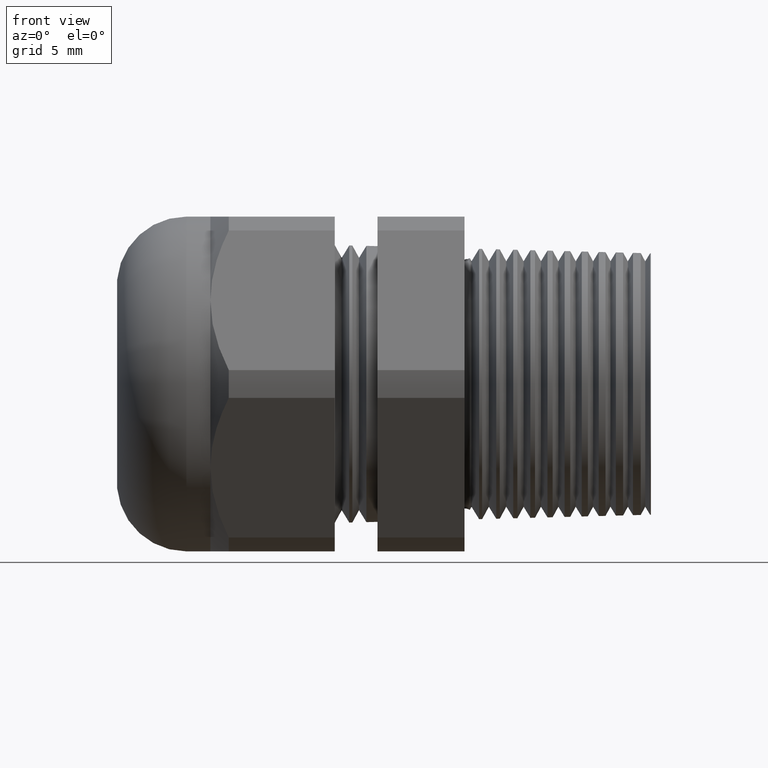
[diagram: clean part render]
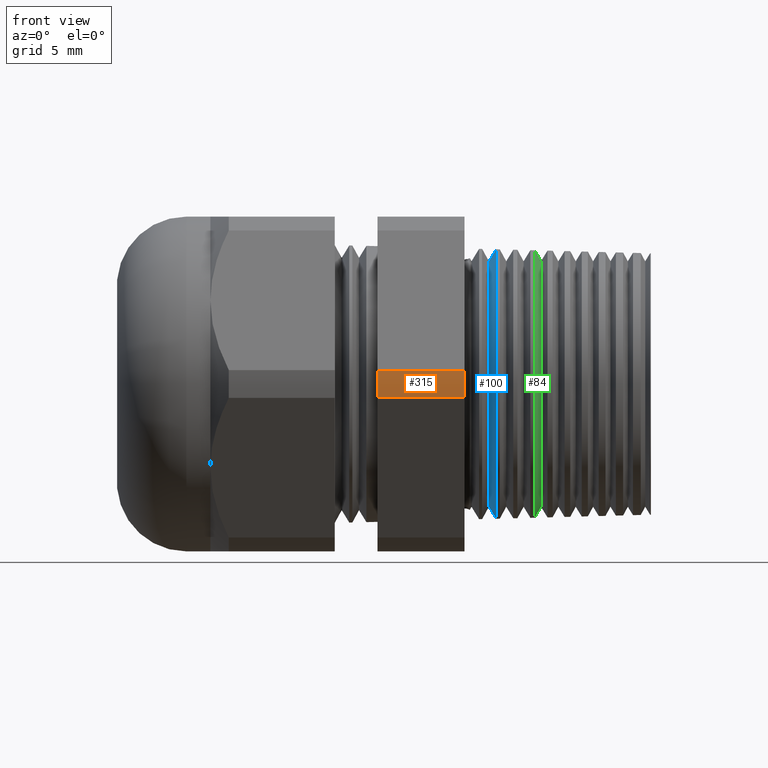
[diagram: same view with three faces highlighted in distinct colors, each labeled with its STEP entity id]
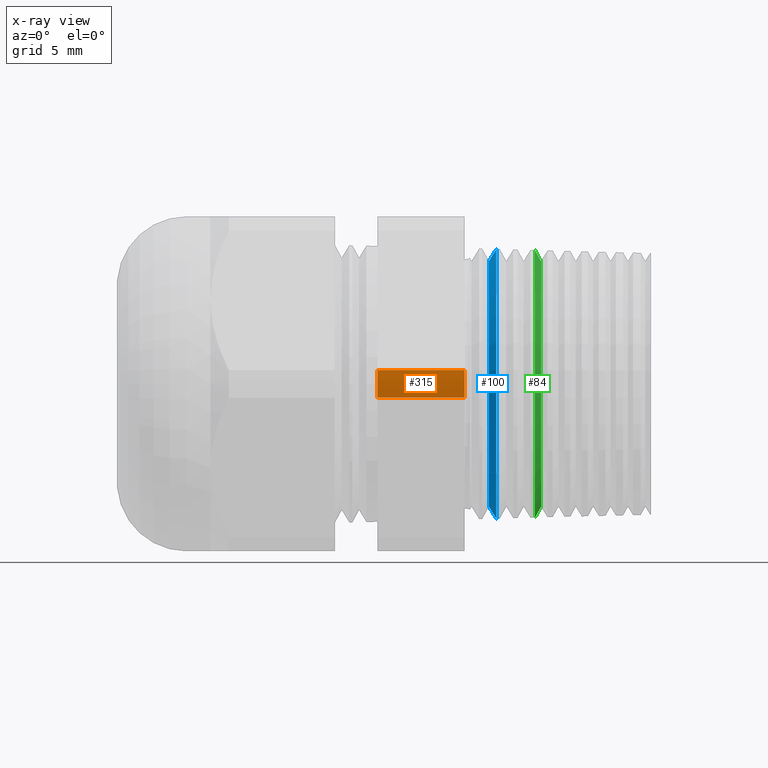
[diagram: x-ray of the same camera — body ghosted, the three highlighted faces saturated]
A machine part, front view with three faces highlighted in distinct colors.
The next image is the same camera in x-ray (body ghosted, the three faces saturated) — at least one of them is partly hidden behind the body in this view.
Their STEP definitions:

[orange] entity #315 — the highlighted cylindrical surface (partial cylindrical patch) has radius 14.9428 mm, axis along (-1, 0, 0).
#282 = VERTEX_POINT ( 'NONE', #1743 ) ;
#284 = EDGE_CURVE ( 'NONE', #282, #285, #1742, .T. ) ;
#285 = VERTEX_POINT ( 'NONE', #1737 ) ;
#298 = ORIENTED_EDGE ( 'NONE', *, *, #1498, .F. ) ;
#313 = EDGE_CURVE ( 'NONE', #1500, #285, #1757, .T. ) ;
#315 = ADVANCED_FACE ( 'NONE', ( #1753 ), #1752, .T. ) ;
#316 = EDGE_LOOP ( 'NONE', ( #317, #318, #374, #298 ) ) ;
#317 = ORIENTED_EDGE ( 'NONE', *, *, #313, .T. ) ;
#318 = ORIENTED_EDGE ( 'NONE', *, *, #284, .F. ) ;
#374 = ORIENTED_EDGE ( 'NONE', *, *, #375, .F. ) ;
#375 = EDGE_CURVE ( 'NONE', #1496, #282, #1823, .T. ) ;
#1496 = VERTEX_POINT ( 'NONE', #3173 ) ;
#1498 = EDGE_CURVE ( 'NONE', #1500, #1496, #3229, .T. ) ;
#1500 = VERTEX_POINT ( 'NONE', #3224 ) ;
#1737 = CARTESIAN_POINT ( 'NONE',  ( -0.5855905511811022600, -0.5866618723924791300, 0.04387183015273703200 ) ) ;
#1738 = DIRECTION ( 'NONE',  ( 0.0000000000000000000, 0.0000000000000000000, 1.000000000000000000 ) ) ;
#1739 = DIRECTION ( 'NONE',  ( -1.000000000000000000, 0.0000000000000000000, 0.0000000000000000000 ) ) ;
#1740 = CARTESIAN_POINT ( 'NONE',  ( -0.5855905511811022600, 0.0000000000000000000, 0.0000000000000000000 ) ) ;
#1741 = AXIS2_PLACEMENT_3D ( 'NONE', #1740, #1739, #1738 ) ;
#1742 = CIRCLE ( 'NONE', #1741, 0.5883000000000000500 ) ;
#1743 = CARTESIAN_POINT ( 'NONE',  ( -0.5855905511811022600, -0.5866618723924791300, -0.04387183015273716400 ) ) ;
#1748 = DIRECTION ( 'NONE',  ( -1.000000000000000000, 0.0000000000000000000, 0.0000000000000000000 ) ) ;
#1749 = CARTESIAN_POINT ( 'NONE',  ( 0.2800000000000000300, 0.0000000000000000000, 0.0000000000000000000 ) ) ;
#1750 = AXIS2_PLACEMENT_3D ( 'NONE', #1749, #1748, #1814 ) ;
#1752 = CYLINDRICAL_SURFACE ( 'NONE', #1750, 0.5883000000000000500 ) ;
#1753 = FACE_OUTER_BOUND ( 'NONE', #316, .T. ) ;
#1754 = DIRECTION ( 'NONE',  ( -1.000000000000000000, 0.0000000000000000000, 0.0000000000000000000 ) ) ;
#1755 = VECTOR ( 'NONE', #1754, 39.37007874015748100 ) ;
#1756 = CARTESIAN_POINT ( 'NONE',  ( 0.2800000000000000300, -0.5866618723924791300, 0.04387183015273703200 ) ) ;
#1757 = LINE ( 'NONE', #1756, #1755 ) ;
#1814 = DIRECTION ( 'NONE',  ( 0.0000000000000000000, 0.0000000000000000000, 1.000000000000000000 ) ) ;
#1816 = DIRECTION ( 'NONE',  ( -1.000000000000000000, 0.0000000000000000000, 0.0000000000000000000 ) ) ;
#1817 = VECTOR ( 'NONE', #1816, 39.37007874015748100 ) ;
#1818 = CARTESIAN_POINT ( 'NONE',  ( 0.2800000000000000300, -0.5866618723924791300, -0.04387183015273716400 ) ) ;
#1823 = LINE ( 'NONE', #1818, #1817 ) ;
#3173 = CARTESIAN_POINT ( 'NONE',  ( -0.3100000000000000000, -0.5866618723924791300, -0.04387183015273716400 ) ) ;
#3224 = CARTESIAN_POINT ( 'NONE',  ( -0.3100000000000000000, -0.5866618723924791300, 0.04387183015273703200 ) ) ;
#3225 = DIRECTION ( 'NONE',  ( 0.0000000000000000000, 0.0000000000000000000, -1.000000000000000000 ) ) ;
#3226 = DIRECTION ( 'NONE',  ( 1.000000000000000000, 0.0000000000000000000, 0.0000000000000000000 ) ) ;
#3227 = CARTESIAN_POINT ( 'NONE',  ( -0.3100000000000000000, 0.0000000000000000000, 0.0000000000000000000 ) ) ;
#3228 = AXIS2_PLACEMENT_3D ( 'NONE', #3227, #3226, #3225 ) ;
#3229 = CIRCLE ( 'NONE', #3228, 0.5883000000000000500 ) ;

[blue] entity #100 — the highlighted conical surface has half-angle 58.5 deg.
#21 = EDGE_CURVE ( 'NONE', #1424, #1439, #550, .T. ) ;
#100 = ADVANCED_FACE ( 'NONE', ( #622 ), #683, .T. ) ;
#546 = DIRECTION ( 'NONE',  ( 0.0000000000000000000, 0.0000000000000000000, -1.000000000000000000 ) ) ;
#547 = DIRECTION ( 'NONE',  ( 1.000000000000000000, 0.0000000000000000000, 0.0000000000000000000 ) ) ;
#548 = CARTESIAN_POINT ( 'NONE',  ( -0.2329609809054343500, 0.0000000000000000000, 0.0000000000000000000 ) ) ;
#549 = AXIS2_PLACEMENT_3D ( 'NONE', #548, #547, #546 ) ;
#550 = CIRCLE ( 'NONE', #549, 0.3886461439448840000 ) ;
#622 = FACE_OUTER_BOUND ( 'NONE', #923, .T. ) ;
#679 = DIRECTION ( 'NONE',  ( 0.0000000000000000000, 0.0000000000000000000, -1.000000000000000000 ) ) ;
#680 = DIRECTION ( 'NONE',  ( 1.000000000000000000, 0.0000000000000000000, 0.0000000000000000000 ) ) ;
#681 = CARTESIAN_POINT ( 'NONE',  ( -0.2329609809054343500, 0.0000000000000000000, 0.0000000000000000000 ) ) ;
#682 = AXIS2_PLACEMENT_3D ( 'NONE', #681, #680, #679 ) ;
#683 = CONICAL_SURFACE ( 'NONE', #682, 0.3886461439448840000, 1.021017612416684500 ) ;
#919 = ORIENTED_EDGE ( 'NONE', *, *, #965, .T. ) ;
#920 = ORIENTED_EDGE ( 'NONE', *, *, #1415, .T. ) ;
#921 = ORIENTED_EDGE ( 'NONE', *, *, #21, .T. ) ;
#922 = ORIENTED_EDGE ( 'NONE', *, *, #1422, .F. ) ;
#923 = EDGE_LOOP ( 'NONE', ( #922, #921, #920, #919 ) ) ;
#965 = EDGE_CURVE ( 'NONE', #1418, #1416, #2164, .T. ) ;
#1415 = EDGE_CURVE ( 'NONE', #1439, #1418, #3011, .T. ) ;
#1416 = VERTEX_POINT ( 'NONE', #3007 ) ;
#1418 = VERTEX_POINT ( 'NONE', #3070 ) ;
#1422 = EDGE_CURVE ( 'NONE', #1424, #1416, #3063, .T. ) ;
#1424 = VERTEX_POINT ( 'NONE', #3054 ) ;
#1439 = VERTEX_POINT ( 'NONE', #3086 ) ;
#2157 = DIRECTION ( 'NONE',  ( 0.0000000000000000000, 0.0000000000000000000, -1.000000000000000000 ) ) ;
#2158 = DIRECTION ( 'NONE',  ( -1.000000000000000000, 0.0000000000000000000, 0.0000000000000000000 ) ) ;
#2159 = CARTESIAN_POINT ( 'NONE',  ( -0.2096964386471827100, 0.0000000000000000000, 0.0000000000000000000 ) ) ;
#2160 = AXIS2_PLACEMENT_3D ( 'NONE', #2159, #2158, #2157 ) ;
#2164 = CIRCLE ( 'NONE', #2160, 0.4266104264792963100 ) ;
#3007 = CARTESIAN_POINT ( 'NONE',  ( -0.2096964386471827100, 0.0000000000000000000, 0.4266104264792963700 ) ) ;
#3008 = DIRECTION ( 'NONE',  ( 0.5224985647159473600, 0.0000000000000000000, -0.8526401643540930700 ) ) ;
#3009 = VECTOR ( 'NONE', #3008, 39.37007874015748100 ) ;
#3010 = CARTESIAN_POINT ( 'NONE',  ( -0.2329609809054343500, 0.0000000000000000000, -0.3886461439448840000 ) ) ;
#3011 = LINE ( 'NONE', #3010, #3009 ) ;
#3054 = CARTESIAN_POINT ( 'NONE',  ( -0.2329609809054343500, 0.0000000000000000000, 0.3886461439448840000 ) ) ;
#3060 = DIRECTION ( 'NONE',  ( 0.5224985647159473600, 1.044183048100713300E-016, 0.8526401643540930700 ) ) ;
#3061 = VECTOR ( 'NONE', #3060, 39.37007874015748100 ) ;
#3062 = CARTESIAN_POINT ( 'NONE',  ( -0.2329609809054343500, 4.759542561830636400E-017, 0.3886461439448840000 ) ) ;
#3063 = LINE ( 'NONE', #3062, #3061 ) ;
#3070 = CARTESIAN_POINT ( 'NONE',  ( -0.2096964386471827100, 5.224470932707575900E-017, -0.4266104264792963700 ) ) ;
#3086 = CARTESIAN_POINT ( 'NONE',  ( -0.2329609809054343500, 4.999143641846741500E-017, -0.3886461439448840000 ) ) ;

[green] entity #84 — the highlighted conical surface has half-angle 61.5 deg.
#65 = ORIENTED_EDGE ( 'NONE', *, *, #1428, .T. ) ;
#66 = ORIENTED_EDGE ( 'NONE', *, *, #960, .T. ) ;
#84 = ADVANCED_FACE ( 'NONE', ( #644 ), #643, .T. ) ;
#85 = EDGE_LOOP ( 'NONE', ( #86, #87, #65, #66 ) ) ;
#86 = ORIENTED_EDGE ( 'NONE', *, *, #1429, .F. ) ;
#87 = ORIENTED_EDGE ( 'NONE', *, *, #139, .F. ) ;
#139 = EDGE_CURVE ( 'NONE', #1381, #1390, #700, .T. ) ;
#639 = DIRECTION ( 'NONE',  ( 0.0000000000000000000, 0.0000000000000000000, 1.000000000000000000 ) ) ;
#640 = DIRECTION ( 'NONE',  ( -1.000000000000000000, 0.0000000000000000000, 0.0000000000000000000 ) ) ;
#641 = AXIS2_PLACEMENT_3D ( 'NONE', #648, #640, #639 ) ;
#643 = CONICAL_SURFACE ( 'NONE', #641, 0.4292369676699906400, 1.073377489976514900 ) ;
#644 = FACE_OUTER_BOUND ( 'NONE', #85, .T. ) ;
#648 = CARTESIAN_POINT ( 'NONE',  ( -0.08999999999999996900, 0.0000000000000000000, 0.0000000000000000000 ) ) ;
#697 = DIRECTION ( 'NONE',  ( 0.0000000000000000000, 0.0000000000000000000, -1.000000000000000000 ) ) ;
#698 = DIRECTION ( 'NONE',  ( 1.000000000000000000, 0.0000000000000000000, 0.0000000000000000000 ) ) ;
#699 = AXIS2_PLACEMENT_3D ( 'NONE', #705, #698, #697 ) ;
#700 = CIRCLE ( 'NONE', #699, 0.3886461439448840000 ) ;
#705 = CARTESIAN_POINT ( 'NONE',  ( -0.06796098090543434300, 0.0000000000000000000, 0.0000000000000000000 ) ) ;
#960 = EDGE_CURVE ( 'NONE', #1658, #1637, #2115, .T. ) ;
#1381 = VERTEX_POINT ( 'NONE', #3002 ) ;
#1390 = VERTEX_POINT ( 'NONE', #2991 ) ;
#1428 = EDGE_CURVE ( 'NONE', #1381, #1658, #3048, .T. ) ;
#1429 = EDGE_CURVE ( 'NONE', #1390, #1637, #3044, .T. ) ;
#1637 = VERTEX_POINT ( 'NONE', #3456 ) ;
#1658 = VERTEX_POINT ( 'NONE', #3527 ) ;
#2111 = DIRECTION ( 'NONE',  ( 0.0000000000000000000, 0.0000000000000000000, 1.000000000000000000 ) ) ;
#2112 = DIRECTION ( 'NONE',  ( 1.000000000000000000, 0.0000000000000000000, 0.0000000000000000000 ) ) ;
#2113 = CARTESIAN_POINT ( 'NONE',  ( -0.08682697155023011400, 0.0000000000000000000, 0.0000000000000000000 ) ) ;
#2114 = AXIS2_PLACEMENT_3D ( 'NONE', #2113, #2112, #2111 ) ;
#2115 = CIRCLE ( 'NONE', #2114, 0.4233929762506486400 ) ;
#2991 = CARTESIAN_POINT ( 'NONE',  ( -0.06796098090543434300, 4.972305546649458700E-017, -0.3886461439448840000 ) ) ;
#3002 = CARTESIAN_POINT ( 'NONE',  ( -0.06796098090543434300, 0.0000000000000000000, 0.3886461439448840000 ) ) ;
#3041 = DIRECTION ( 'NONE',  ( -0.4771587602596063500, 1.076240564057396000E-016, -0.8788171126619663800 ) ) ;
#3042 = VECTOR ( 'NONE', #3041, 39.37007874015748900 ) ;
#3043 = CARTESIAN_POINT ( 'NONE',  ( -0.08999999999999996900, 5.256636785327700000E-017, -0.4292369676699906400 ) ) ;
#3044 = LINE ( 'NONE', #3043, #3042 ) ;
#3045 = DIRECTION ( 'NONE',  ( -0.4771587602596063500, 0.0000000000000000000, 0.8788171126619663800 ) ) ;
#3046 = VECTOR ( 'NONE', #3045, 39.37007874015748900 ) ;
#3047 = CARTESIAN_POINT ( 'NONE',  ( -0.08999999999999996900, 0.0000000000000000000, 0.4292369676699906400 ) ) ;
#3048 = LINE ( 'NONE', #3047, #3046 ) ;
#3456 = CARTESIAN_POINT ( 'NONE',  ( -0.08682697155023011400, 5.187410611841512800E-017, -0.4233929762506486400 ) ) ;
#3527 = CARTESIAN_POINT ( 'NONE',  ( -0.08682697155023011400, 0.0000000000000000000, 0.4233929762506486400 ) ) ;